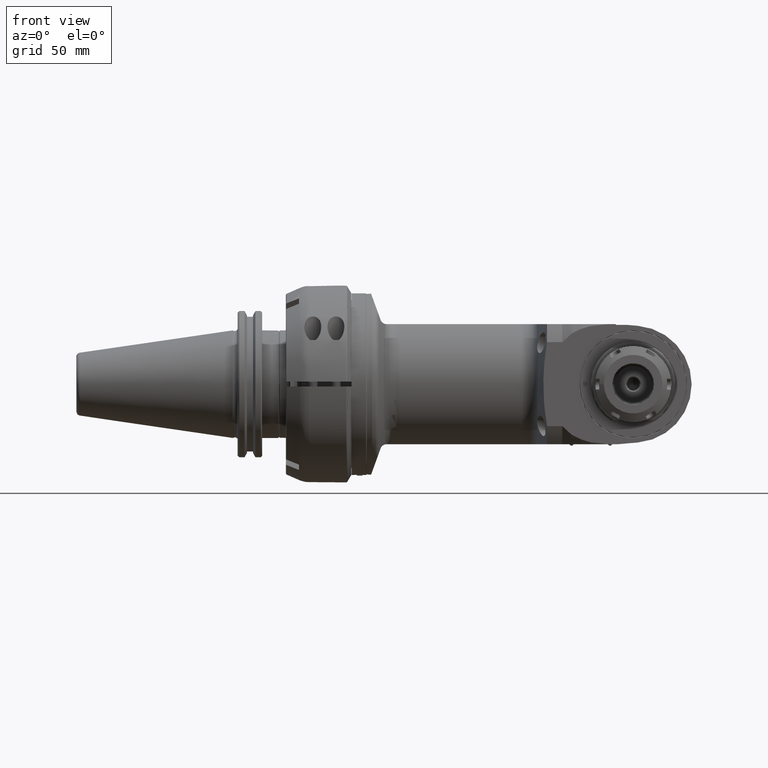
[diagram: clean part render]
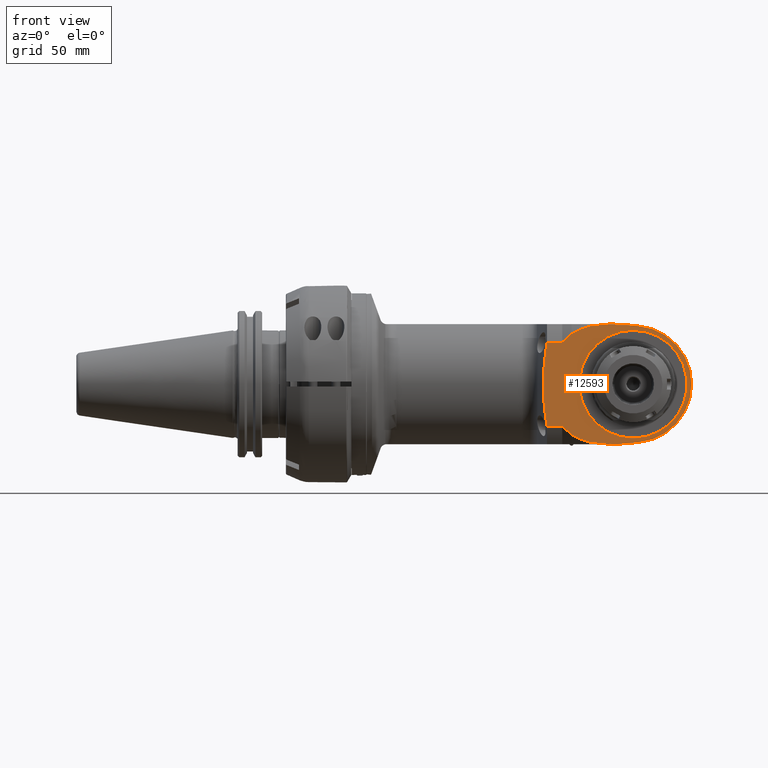
[diagram: same view with one face highlighted and labeled with its STEP entity id]
A machine part, front view. The second image highlights one B-rep face of the part: STEP entity #12593.
In plain terms, the highlighted planar face has unit normal (0, 1, 0).
Its self-contained STEP definition (entity closure, byte-faithful):
#734=FACE_BOUND('',#2413,.T.);
#1120=CIRCLE('',#13807,38.);
#1121=CIRCLE('',#13808,35.);
#1684=FACE_OUTER_BOUND('',#2412,.T.);
#2412=EDGE_LOOP('',(#10230,#10231,#10232,#10233,#10234,#10235,#10236,#10237,
#10238,#10239,#10240,#10241,#10242,#10243,#10244,#10245,#10246,#10247));
#2413=EDGE_LOOP('',(#10248));
#2854=(
BOUNDED_CURVE()
B_SPLINE_CURVE(2,(#34847,#34848,#34849),.UNSPECIFIED.,.F.,.F.)
B_SPLINE_CURVE_WITH_KNOTS((3,3),(3.46574667649423,4.69997156363712),
 .UNSPECIFIED.)
CURVE()
GEOMETRIC_REPRESENTATION_ITEM()
RATIONAL_B_SPLINE_CURVE((1.00131005125035,1.00141766141965,1.00143577259223))
REPRESENTATION_ITEM('')
);
#2855=(
BOUNDED_CURVE()
B_SPLINE_CURVE(2,(#34851,#34852,#34853),.UNSPECIFIED.,.F.,.F.)
B_SPLINE_CURVE_WITH_KNOTS((3,3),(-4.14584983345942,-3.45064970794969),
 .UNSPECIFIED.)
CURVE()
GEOMETRIC_REPRESENTATION_ITEM()
RATIONAL_B_SPLINE_CURVE((1.00981817843623,1.0095526696491,1.0091001322618))
REPRESENTATION_ITEM('')
);
#2856=(
BOUNDED_CURVE()
B_SPLINE_CURVE(2,(#34855,#34856,#34857),.UNSPECIFIED.,.F.,.F.)
B_SPLINE_CURVE_WITH_KNOTS((3,3),(-4.06473212786279,-3.26635224676758),
 .UNSPECIFIED.)
CURVE()
GEOMETRIC_REPRESENTATION_ITEM()
RATIONAL_B_SPLINE_CURVE((1.02083211429876,1.02002626044997,1.01873328218455))
REPRESENTATION_ITEM('')
);
#2857=(
BOUNDED_CURVE()
B_SPLINE_CURVE(2,(#34859,#34860,#34861),.UNSPECIFIED.,.F.,.F.)
B_SPLINE_CURVE_WITH_KNOTS((3,3),(-5.08883926254432,-4.03890607668467),
 .UNSPECIFIED.)
CURVE()
GEOMETRIC_REPRESENTATION_ITEM()
RATIONAL_B_SPLINE_CURVE((1.06243232138824,1.06042572721876,1.05658950207019))
REPRESENTATION_ITEM('')
);
#2858=(
BOUNDED_CURVE()
B_SPLINE_CURVE(2,(#34865,#34866,#34867),.UNSPECIFIED.,.F.,.F.)
B_SPLINE_CURVE_WITH_KNOTS((3,3),(-39.2901274757521,-22.6576735332739),
 .UNSPECIFIED.)
CURVE()
GEOMETRIC_REPRESENTATION_ITEM()
RATIONAL_B_SPLINE_CURVE((2.89442768351033,3.18877626149355,2.89442768350985))
REPRESENTATION_ITEM('')
);
#2859=(
BOUNDED_CURVE()
B_SPLINE_CURVE(2,(#34871,#34872,#34873),.UNSPECIFIED.,.F.,.F.)
B_SPLINE_CURVE_WITH_KNOTS((3,3),(7.39180618123146,8.44173936707015),
 .UNSPECIFIED.)
CURVE()
GEOMETRIC_REPRESENTATION_ITEM()
RATIONAL_B_SPLINE_CURVE((1.06243232138811,1.06042572721862,1.05658950207011))
REPRESENTATION_ITEM('')
);
#2860=(
BOUNDED_CURVE()
B_SPLINE_CURVE(2,(#34875,#34876,#34877),.UNSPECIFIED.,.F.,.F.)
B_SPLINE_CURVE_WITH_KNOTS((3,3),(6.70626472364303,7.50464455392589),
 .UNSPECIFIED.)
CURVE()
GEOMETRIC_REPRESENTATION_ITEM()
RATIONAL_B_SPLINE_CURVE((1.02083211419612,1.0200262603676,1.01873328218445))
REPRESENTATION_ITEM('')
);
#2861=(
BOUNDED_CURVE()
B_SPLINE_CURVE(2,(#34879,#34880,#34881),.UNSPECIFIED.,.F.,.F.)
B_SPLINE_CURVE_WITH_KNOTS((3,3),(6.11968423305367,6.81488440493575),
 .UNSPECIFIED.)
CURVE()
GEOMETRIC_REPRESENTATION_ITEM()
RATIONAL_B_SPLINE_CURVE((1.00981817843447,1.00955266962901,1.00910013219843))
REPRESENTATION_ITEM('')
);
#2862=(
BOUNDED_CURVE()
B_SPLINE_CURVE(2,(#34883,#34884,#34885),.UNSPECIFIED.,.F.,.F.)
B_SPLINE_CURVE_WITH_KNOTS((3,3),(5.19949135147145,6.43371624076894),
 .UNSPECIFIED.)
CURVE()
GEOMETRIC_REPRESENTATION_ITEM()
RATIONAL_B_SPLINE_CURVE((1.00143577259223,1.00141766141962,1.00131005124997))
REPRESENTATION_ITEM('')
);
#3560=LINE('',#34819,#4508);
#3564=LINE('',#34833,#4512);
#3567=LINE('',#34840,#4515);
#3568=LINE('',#34844,#4516);
#3569=LINE('',#34845,#4517);
#3570=LINE('',#34863,#4518);
#3571=LINE('',#34869,#4519);
#3572=LINE('',#34886,#4520);
#4508=VECTOR('',#16342,10.);
#4512=VECTOR('',#16354,10.);
#4515=VECTOR('',#16359,13.1328290761894);
#4516=VECTOR('',#16362,7.39597245335467);
#4517=VECTOR('',#16363,6.954089679144);
#4518=VECTOR('',#16364,9.909409918381);
#4519=VECTOR('',#16365,9.909409918361);
#4520=VECTOR('',#16366,6.26955266875);
#5656=VERTEX_POINT('',#34698);
#5676=VERTEX_POINT('',#34815);
#5682=VERTEX_POINT('',#34832);
#5684=VERTEX_POINT('',#34838);
#5685=VERTEX_POINT('',#34839);
#5686=VERTEX_POINT('',#34841);
#5687=VERTEX_POINT('',#34843);
#5688=VERTEX_POINT('',#34846);
#5689=VERTEX_POINT('',#34850);
#5690=VERTEX_POINT('',#34854);
#5691=VERTEX_POINT('',#34858);
#5692=VERTEX_POINT('',#34862);
#5693=VERTEX_POINT('',#34864);
#5694=VERTEX_POINT('',#34868);
#5695=VERTEX_POINT('',#34870);
#5696=VERTEX_POINT('',#34874);
#5697=VERTEX_POINT('',#34878);
#5698=VERTEX_POINT('',#34882);
#5699=VERTEX_POINT('',#34887);
#7344=EDGE_CURVE('',#5656,#5676,#3560,.T.);
#7351=EDGE_CURVE('',#5682,#5656,#3564,.T.);
#7354=EDGE_CURVE('',#5684,#5685,#3567,.T.);
#7355=EDGE_CURVE('',#5685,#5686,#1120,.T.);
#7356=EDGE_CURVE('',#5686,#5687,#3568,.T.);
#7357=EDGE_CURVE('',#5682,#5687,#3569,.T.);
#7358=EDGE_CURVE('',#5688,#5676,#2854,.T.);
#7359=EDGE_CURVE('',#5688,#5689,#2855,.T.);
#7360=EDGE_CURVE('',#5689,#5690,#2856,.T.);
#7361=EDGE_CURVE('',#5690,#5691,#2857,.T.);
#7362=EDGE_CURVE('',#5692,#5691,#3570,.T.);
#7363=EDGE_CURVE('',#5693,#5692,#2858,.F.);
#7364=EDGE_CURVE('',#5694,#5693,#3571,.T.);
#7365=EDGE_CURVE('',#5695,#5694,#2859,.T.);
#7366=EDGE_CURVE('',#5696,#5695,#2860,.T.);
#7367=EDGE_CURVE('',#5697,#5696,#2861,.T.);
#7368=EDGE_CURVE('',#5698,#5697,#2862,.T.);
#7369=EDGE_CURVE('',#5684,#5698,#3572,.T.);
#7370=EDGE_CURVE('',#5699,#5699,#1121,.T.);
#10230=ORIENTED_EDGE('',*,*,#7354,.T.);
#10231=ORIENTED_EDGE('',*,*,#7355,.T.);
#10232=ORIENTED_EDGE('',*,*,#7356,.T.);
#10233=ORIENTED_EDGE('',*,*,#7357,.F.);
#10234=ORIENTED_EDGE('',*,*,#7351,.T.);
#10235=ORIENTED_EDGE('',*,*,#7344,.T.);
#10236=ORIENTED_EDGE('',*,*,#7358,.F.);
#10237=ORIENTED_EDGE('',*,*,#7359,.T.);
#10238=ORIENTED_EDGE('',*,*,#7360,.T.);
#10239=ORIENTED_EDGE('',*,*,#7361,.T.);
#10240=ORIENTED_EDGE('',*,*,#7362,.F.);
#10241=ORIENTED_EDGE('',*,*,#7363,.F.);
#10242=ORIENTED_EDGE('',*,*,#7364,.F.);
#10243=ORIENTED_EDGE('',*,*,#7365,.F.);
#10244=ORIENTED_EDGE('',*,*,#7366,.F.);
#10245=ORIENTED_EDGE('',*,*,#7367,.F.);
#10246=ORIENTED_EDGE('',*,*,#7368,.F.);
#10247=ORIENTED_EDGE('',*,*,#7369,.F.);
#10248=ORIENTED_EDGE('',*,*,#7370,.T.);
#12079=PLANE('',#13806);
#12593=ADVANCED_FACE('',(#1684,#734),#12079,.F.);
#13806=AXIS2_PLACEMENT_3D('',#34837,#16357,#16358);
#13807=AXIS2_PLACEMENT_3D('',#34842,#16360,#16361);
#13808=AXIS2_PLACEMENT_3D('',#34888,#16367,#16368);
#16342=DIRECTION('',(-1.,0.,0.));
#16354=DIRECTION('',(-0.707106781186498,0.,0.707106781186597));
#16357=DIRECTION('center_axis',(0.,1.,0.));
#16358=DIRECTION('ref_axis',(0.,0.,-1.));
#16359=DIRECTION('',(0.996194698091745,0.,0.0871557427476639));
#16360=DIRECTION('center_axis',(0.,-1.,0.));
#16361=DIRECTION('ref_axis',(0.0871557427475263,0.,-0.996194698091757));
#16362=DIRECTION('',(-0.996194698091745,0.,0.0871557427476639));
#16363=DIRECTION('',(1.,0.,0.));
#16364=DIRECTION('',(1.,2.588508596598E-12,3.619645656802E-11));
#16365=DIRECTION('',(-1.,-1.812673056014E-12,3.451786969146E-11));
#16366=DIRECTION('',(-1.,0.,0.));
#16367=DIRECTION('center_axis',(0.,1.,0.));
#16368=DIRECTION('ref_axis',(0.,0.,1.));
#34698=CARTESIAN_POINT('',(161.490000011152,-59.,38.9999999953807));
#34815=CARTESIAN_POINT('',(156.959510859,-59.,39.));
#34819=CARTESIAN_POINT('',(111.7846528,-59.,39.));
#34832=CARTESIAN_POINT('',(161.99,-59.,38.5));
#34833=CARTESIAN_POINT('',(138.286686400002,-59.,62.2033136000018));
#34837=CARTESIAN_POINT('Origin',(118.4999976,-59.,89.333252));
#34838=CARTESIAN_POINT('',(163.2290635278,-59.,-39.));
#34839=CARTESIAN_POINT('',(176.3119182244,-59.,-37.85539852749));
#34840=CARTESIAN_POINT('',(163.2290635278,-59.,-39.));
#34841=CARTESIAN_POINT('',(176.3119182244,-59.,37.85539852749));
#34842=CARTESIAN_POINT('Origin',(173.,-59.,0.));
#34843=CARTESIAN_POINT('',(168.9440896791,-59.,38.5));
#34844=CARTESIAN_POINT('',(176.3119182244,-59.,37.85539852749));
#34845=CARTESIAN_POINT('',(161.99,-59.,38.5));
#34846=CARTESIAN_POINT('',(145.000000019995,-58.9999999981641,37.6696164115023));
#34847=CARTESIAN_POINT('Ctrl Pts',(145.000000020536,-59.,37.669616406725));
#34848=CARTESIAN_POINT('Ctrl Pts',(150.875993755911,-59.,38.3313820589938));
#34849=CARTESIAN_POINT('Ctrl Pts',(156.959510859067,-59.,38.9999999999991));
#34850=CARTESIAN_POINT('',(139.000000384506,-58.9999999413347,35.7770878915691));
#34851=CARTESIAN_POINT('Ctrl Pts',(145.000000020253,-59.,37.6696164106973));
#34852=CARTESIAN_POINT('Ctrl Pts',(141.922698106803,-59.,36.7165444370491));
#34853=CARTESIAN_POINT('Ctrl Pts',(139.000000421973,-59.,35.7770877763979));
#34854=CARTESIAN_POINT('',(133.000000732202,-58.9999998414815,32.7910056460189));
#34855=CARTESIAN_POINT('Ctrl Pts',(139.000000410599,-59.,35.7770878387269));
#34856=CARTESIAN_POINT('Ctrl Pts',(135.869353199527,-59.,34.2676395371956));
#34857=CARTESIAN_POINT('Ctrl Pts',(133.000000896837,-59.,32.7910053264677));
#34858=CARTESIAN_POINT('',(127.,-59.00000000035,27.27636339413));
#34859=CARTESIAN_POINT('Ctrl Pts',(133.000000807997,-59.,32.7910055579529));
#34860=CARTESIAN_POINT('Ctrl Pts',(129.724577507709,-59.,29.9816595432938));
#34861=CARTESIAN_POINT('Ctrl Pts',(126.999999999659,-59.,27.2763633945283));
#34862=CARTESIAN_POINT('',(117.0905900813,-59.00000000003,27.27636339392));
#34863=CARTESIAN_POINT('',(117.0905900813,-59.00000000003,27.27636339392));
#34864=CARTESIAN_POINT('',(117.0905900813,-59.,-27.27636339397));
#34865=CARTESIAN_POINT('Ctrl Pts',(117.090590081315,-59.,27.2763633939173));
#34866=CARTESIAN_POINT('Ctrl Pts',(112.466043742538,-59.,-2.00568450736682E-11));
#34867=CARTESIAN_POINT('Ctrl Pts',(117.090590081323,-59.,-27.276363393966));
#34868=CARTESIAN_POINT('',(126.9999999997,-58.99999999998,-27.27636339431));
#34869=CARTESIAN_POINT('',(126.9999999997,-58.99999999998,-27.27636339431));
#34870=CARTESIAN_POINT('',(133.000000732018,-58.9999998415215,-32.7910056458222));
#34871=CARTESIAN_POINT('Ctrl Pts',(133.000000807793,-59.,-32.7910055577782));
#34872=CARTESIAN_POINT('Ctrl Pts',(129.724577507588,-59.,-29.9816595431785));
#34873=CARTESIAN_POINT('Ctrl Pts',(126.999999999598,-59.,-27.2763633944676));
#34874=CARTESIAN_POINT('',(139.00000001141,-58.9999999982559,-35.7770876482033));
#34875=CARTESIAN_POINT('Ctrl Pts',(139.000000012172,-59.,-35.7770876466243));
#34876=CARTESIAN_POINT('Ctrl Pts',(135.869353016904,-59.,-34.2676394432179));
#34877=CARTESIAN_POINT('Ctrl Pts',(133.000000896611,-59.,-32.7910053263514));
#34878=CARTESIAN_POINT('',(145.,-59.,-37.66961640442));
#34879=CARTESIAN_POINT('Ctrl Pts',(144.999999999863,-59.,-37.6696164043822));
#34880=CARTESIAN_POINT('Ctrl Pts',(141.922697881601,-59.,-36.716544367188));
#34881=CARTESIAN_POINT('Ctrl Pts',(139.00000001251,-59.,-35.7770876447822));
#34882=CARTESIAN_POINT('',(156.959510859,-59.,-39.));
#34883=CARTESIAN_POINT('Ctrl Pts',(156.959510859067,-59.,-38.9999999999991));
#34884=CARTESIAN_POINT('Ctrl Pts',(150.875993745291,-59.,-38.3313820578265));
#34885=CARTESIAN_POINT('Ctrl Pts',(145.000000000018,-59.,-37.6696164044142));
#34886=CARTESIAN_POINT('',(163.2290635278,-59.,-39.));
#34887=CARTESIAN_POINT('',(173.,-59.,-35.));
#34888=CARTESIAN_POINT('Origin',(173.,-59.,0.));